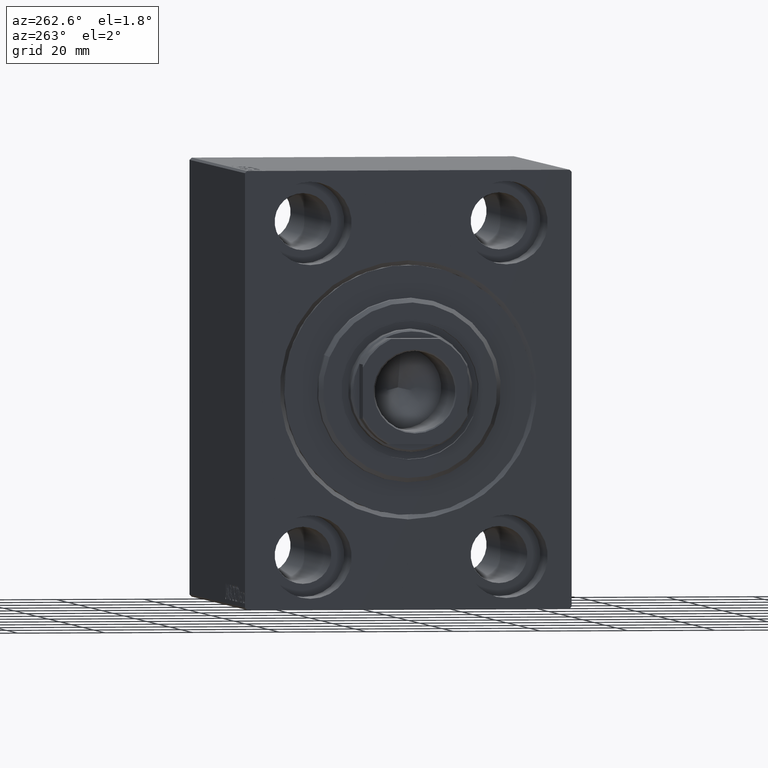
[diagram: clean part render]
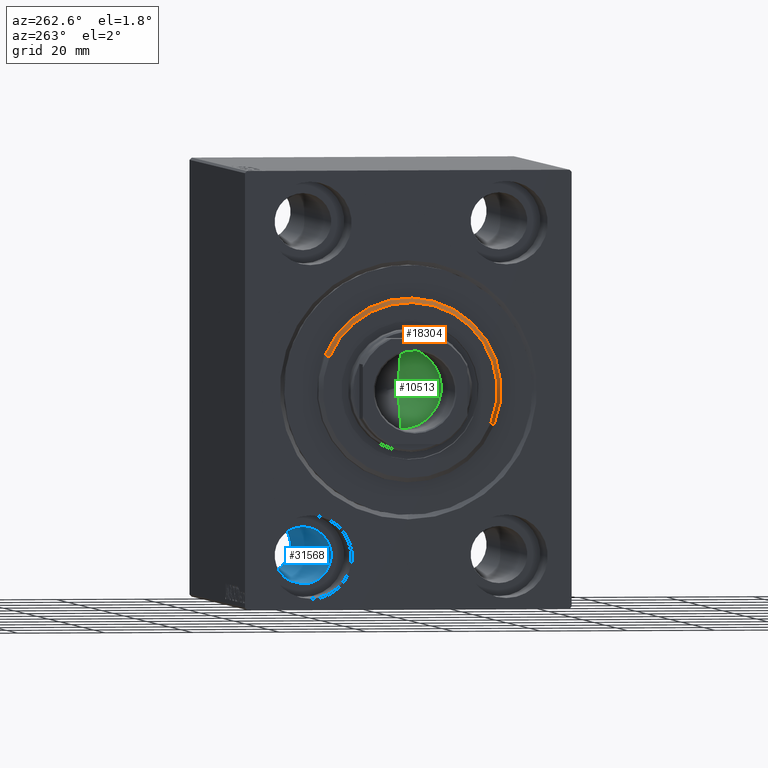
[diagram: same view with three faces highlighted in distinct colors, each labeled with its STEP entity id]
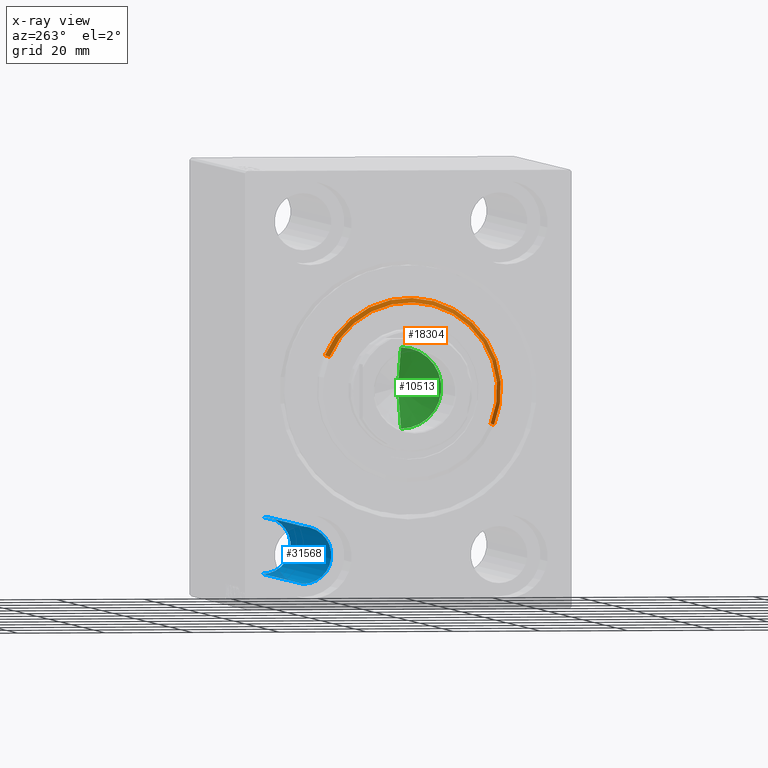
[diagram: x-ray of the same camera — body ghosted, the three highlighted faces saturated]
A machine part, auxiliary view with three faces highlighted in distinct colors.
The next image is the same camera in x-ray (body ghosted, the three faces saturated) — at least one of them is partly hidden behind the body in this view.
Their STEP definitions:

[orange] entity #18304 — the highlighted conical surface has half-angle 45 deg.
#291 = CARTESIAN_POINT ( 'NONE',  ( 1.999999999999995781, 0.000000000000000000, 0.000000000000000000 ) ) ;
#860 = CARTESIAN_POINT ( 'NONE',  ( 1.999999999999995781, 2.571758278209441661E-15, -21.00000000000000000 ) ) ;
#945 = CARTESIAN_POINT ( 'NONE',  ( 3.000000000000000000, 2.449293598294706119E-15, -19.99999999999999645 ) ) ;
#1237 = ORIENTED_EDGE ( 'NONE', *, *, #3890, .F. ) ;
#1366 = LINE ( 'NONE', #945, #41494 ) ;
#1562 = CIRCLE ( 'NONE', #25507, 21.00000000000000000 ) ;
#3890 = EDGE_CURVE ( 'NONE', #30505, #18484, #1366, .T. ) ;
#4432 = DIRECTION ( 'NONE',  ( 0.000000000000000000, 0.000000000000000000, 1.000000000000000000 ) ) ;
#4762 = CARTESIAN_POINT ( 'NONE',  ( 1.999999999999995781, 0.000000000000000000, 21.00000000000000000 ) ) ;
#6189 = CARTESIAN_POINT ( 'NONE',  ( 3.000000000000000000, 0.000000000000000000, 19.99999999999999645 ) ) ;
#6811 = DIRECTION ( 'NONE',  ( 1.000000000000000000, -0.000000000000000000, 0.000000000000000000 ) ) ;
#7131 = DIRECTION ( 'NONE',  ( -1.000000000000000000, 0.000000000000000000, 0.000000000000000000 ) ) ;
#8491 = VERTEX_POINT ( 'NONE', #6189 ) ;
#11655 = EDGE_CURVE ( 'NONE', #8491, #23644, #11966, .T. ) ;
#11834 = CONICAL_SURFACE ( 'NONE', #35810, 19.99999999999999645, 0.7853981633974482790 ) ;
#11966 = LINE ( 'NONE', #22118, #42693 ) ;
#14169 = CIRCLE ( 'NONE', #38839, 19.99999999999999645 ) ;
#14386 = CARTESIAN_POINT ( 'NONE',  ( 3.000000000000000000, 2.510525938252074087E-15, -19.99999999999999645 ) ) ;
#15016 = FACE_OUTER_BOUND ( 'NONE', #24192, .T. ) ;
#18304 = ADVANCED_FACE ( 'NONE', ( #15016 ), #11834, .T. ) ;
#18484 = VERTEX_POINT ( 'NONE', #860 ) ;
#20315 = ORIENTED_EDGE ( 'NONE', *, *, #35592, .F. ) ;
#22118 = CARTESIAN_POINT ( 'NONE',  ( 3.000000000000000000, 0.000000000000000000, 19.99999999999999645 ) ) ;
#23209 = ORIENTED_EDGE ( 'NONE', *, *, #11655, .T. ) ;
#23644 = VERTEX_POINT ( 'NONE', #4762 ) ;
#24192 = EDGE_LOOP ( 'NONE', ( #1237, #34684, #23209, #20315 ) ) ;
#25507 = AXIS2_PLACEMENT_3D ( 'NONE', #291, #7131, #26994 ) ;
#26994 = DIRECTION ( 'NONE',  ( 0.000000000000000000, 0.000000000000000000, -1.000000000000000000 ) ) ;
#28685 = DIRECTION ( 'NONE',  ( -1.000000000000000000, 0.000000000000000000, 0.000000000000000000 ) ) ;
#29776 = CARTESIAN_POINT ( 'NONE',  ( 3.000000000000000000, 0.000000000000000000, 0.000000000000000000 ) ) ;
#30505 = VERTEX_POINT ( 'NONE', #14386 ) ;
#32379 = EDGE_CURVE ( 'NONE', #8491, #30505, #14169, .T. ) ;
#34684 = ORIENTED_EDGE ( 'NONE', *, *, #32379, .F. ) ;
#35592 = EDGE_CURVE ( 'NONE', #18484, #23644, #1562, .T. ) ;
#35810 = AXIS2_PLACEMENT_3D ( 'NONE', #42385, #28685, #4432 ) ;
#38839 = AXIS2_PLACEMENT_3D ( 'NONE', #29776, #6811, #40589 ) ;
#38901 = DIRECTION ( 'NONE',  ( -0.7071067811865474617, 0.000000000000000000, 0.7071067811865474617 ) ) ;
#40589 = DIRECTION ( 'NONE',  ( 0.000000000000000000, 0.000000000000000000, -1.000000000000000000 ) ) ;
#41494 = VECTOR ( 'NONE', #41764, 1000.000000000000114 ) ;
#41764 = DIRECTION ( 'NONE',  ( -0.7071067811865474617, 8.659560562354932858E-17, -0.7071067811865474617 ) ) ;
#42385 = CARTESIAN_POINT ( 'NONE',  ( 3.000000000000000000, 0.000000000000000000, 0.000000000000000000 ) ) ;
#42693 = VECTOR ( 'NONE', #38901, 1000.000000000000114 ) ;

[blue] entity #31568 — the highlighted cylindrical surface (edge-blend (fillet) strip) has radius 6.5 mm, axis along (-1, -0, -0).
#135 = LINE ( 'NONE', #16678, #33061 ) ;
#1350 = VECTOR ( 'NONE', #3820, 1000.000000000000000 ) ;
#2179 = CARTESIAN_POINT ( 'NONE',  ( 98.00000000000000000, 22.49999999999999645, -37.99999999999999289 ) ) ;
#3133 = CARTESIAN_POINT ( 'NONE',  ( 85.00000000000000000, 22.49999999999999645, -44.49999999999999289 ) ) ;
#3820 = DIRECTION ( 'NONE',  ( -1.000000000000000000, -0.000000000000000000, -0.000000000000000000 ) ) ;
#4675 = EDGE_CURVE ( 'NONE', #30281, #30081, #34057, .T. ) ;
#7076 = AXIS2_PLACEMENT_3D ( 'NONE', #2179, #31751, #14983 ) ;
#9071 = AXIS2_PLACEMENT_3D ( 'NONE', #11024, #38178, #37952 ) ;
#10166 = ORIENTED_EDGE ( 'NONE', *, *, #12268, .T. ) ;
#11024 = CARTESIAN_POINT ( 'NONE',  ( 85.00000000000000000, 22.49999999999999645, -37.99999999999999289 ) ) ;
#12268 = EDGE_CURVE ( 'NONE', #21032, #30081, #18737, .T. ) ;
#13372 = DIRECTION ( 'NONE',  ( -1.000000000000000000, -0.000000000000000000, -0.000000000000000000 ) ) ;
#13972 = CARTESIAN_POINT ( 'NONE',  ( 98.00000000000000000, 22.49999999999999645, -31.49999999999999289 ) ) ;
#14983 = DIRECTION ( 'NONE',  ( 0.000000000000000000, 0.000000000000000000, 1.000000000000000000 ) ) ;
#16678 = CARTESIAN_POINT ( 'NONE',  ( 98.00000000000000000, 22.49999999999999645, -44.49999999999999289 ) ) ;
#18737 = CIRCLE ( 'NONE', #24374, 6.499999999999999112 ) ;
#20840 = EDGE_CURVE ( 'NONE', #38109, #30281, #23143, .T. ) ;
#21032 = VERTEX_POINT ( 'NONE', #34592 ) ;
#22485 = CYLINDRICAL_SURFACE ( 'NONE', #7076, 6.499999999999999112 ) ;
#22584 = CARTESIAN_POINT ( 'NONE',  ( 85.00000000000000000, 22.49999999999999645, -31.49999999999999289 ) ) ;
#23143 = CIRCLE ( 'NONE', #9071, 6.499999999999999112 ) ;
#24374 = AXIS2_PLACEMENT_3D ( 'NONE', #26851, #40755, #40319 ) ;
#26250 = EDGE_CURVE ( 'NONE', #38109, #21032, #135, .T. ) ;
#26851 = CARTESIAN_POINT ( 'NONE',  ( 12.99999999999999822, 22.49999999999999645, -37.99999999999999289 ) ) ;
#28588 = CARTESIAN_POINT ( 'NONE',  ( 12.99999999999999822, 22.49999999999999645, -31.49999999999999289 ) ) ;
#30081 = VERTEX_POINT ( 'NONE', #28588 ) ;
#30281 = VERTEX_POINT ( 'NONE', #22584 ) ;
#31300 = ORIENTED_EDGE ( 'NONE', *, *, #20840, .F. ) ;
#31468 = ORIENTED_EDGE ( 'NONE', *, *, #4675, .F. ) ;
#31568 = ADVANCED_FACE ( 'NONE', ( #35948 ), #22485, .F. ) ;
#31751 = DIRECTION ( 'NONE',  ( -1.000000000000000000, -0.000000000000000000, -0.000000000000000000 ) ) ;
#33061 = VECTOR ( 'NONE', #13372, 1000.000000000000000 ) ;
#34057 = LINE ( 'NONE', #13972, #1350 ) ;
#34592 = CARTESIAN_POINT ( 'NONE',  ( 12.99999999999999822, 22.49999999999999645, -44.49999999999999289 ) ) ;
#35948 = FACE_OUTER_BOUND ( 'NONE', #36540, .T. ) ;
#36540 = EDGE_LOOP ( 'NONE', ( #31300, #39257, #10166, #31468 ) ) ;
#37952 = DIRECTION ( 'NONE',  ( 0.000000000000000000, 0.000000000000000000, -1.000000000000000000 ) ) ;
#38109 = VERTEX_POINT ( 'NONE', #3133 ) ;
#38178 = DIRECTION ( 'NONE',  ( -1.000000000000000000, -0.000000000000000000, -0.000000000000000000 ) ) ;
#39257 = ORIENTED_EDGE ( 'NONE', *, *, #26250, .T. ) ;
#40319 = DIRECTION ( 'NONE',  ( 0.000000000000000000, 0.000000000000000000, 1.000000000000000000 ) ) ;
#40755 = DIRECTION ( 'NONE',  ( -1.000000000000000000, 0.000000000000000000, 0.000000000000000000 ) ) ;

[green] entity #10513 — the highlighted conical surface has half-angle 59 deg.
#105 = CONICAL_SURFACE ( 'NONE', #828, 9.249999999999994671, 1.029744258676652535 ) ;
#826 = CARTESIAN_POINT ( 'NONE',  ( -6.793016015247754405E-15, 0.000000000000000000, 65.44203927399505005 ) ) ;
#828 = AXIS2_PLACEMENT_3D ( 'NONE', #16426, #19084, #29879 ) ;
#1503 = EDGE_CURVE ( 'NONE', #28379, #10415, #37314, .T. ) ;
#3387 = CARTESIAN_POINT ( 'NONE',  ( -9.249999999999994671, 1.132798289211300909E-15, 71.00000000000001421 ) ) ;
#5482 = VECTOR ( 'NONE', #20543, 1000.000000000000000 ) ;
#7175 = LINE ( 'NONE', #20848, #34520 ) ;
#9368 = EDGE_LOOP ( 'NONE', ( #16508, #11170, #19105 ) ) ;
#10415 = VERTEX_POINT ( 'NONE', #22828 ) ;
#10513 = ADVANCED_FACE ( 'NONE', ( #16632 ), #105, .F. ) ;
#11170 = ORIENTED_EDGE ( 'NONE', *, *, #28598, .T. ) ;
#11268 = VERTEX_POINT ( 'NONE', #3387 ) ;
#15400 = DIRECTION ( 'NONE',  ( 1.000000000000000000, 0.000000000000000000, 0.000000000000000000 ) ) ;
#16426 = CARTESIAN_POINT ( 'NONE',  ( 0.000000000000000000, 0.000000000000000000, 71.00000000000001421 ) ) ;
#16508 = ORIENTED_EDGE ( 'NONE', *, *, #1503, .F. ) ;
#16632 = FACE_OUTER_BOUND ( 'NONE', #9368, .T. ) ;
#17978 = DIRECTION ( 'NONE',  ( -0.8571673007021113344, 1.049727191138617463E-16, 0.5150380749100558209 ) ) ;
#19084 = DIRECTION ( 'NONE',  ( -0.000000000000000000, -0.000000000000000000, 1.000000000000000000 ) ) ;
#19105 = ORIENTED_EDGE ( 'NONE', *, *, #23269, .T. ) ;
#20543 = DIRECTION ( 'NONE',  ( 0.8571673007021113344, 0.000000000000000000, 0.5150380749100558209 ) ) ;
#20729 = DIRECTION ( 'NONE',  ( -0.000000000000000000, -0.000000000000000000, 1.000000000000000000 ) ) ;
#20848 = CARTESIAN_POINT ( 'NONE',  ( -9.249999999999994671, 1.132798289211300909E-15, 71.00000000000001421 ) ) ;
#22828 = CARTESIAN_POINT ( 'NONE',  ( 9.249999999999994671, 0.000000000000000000, 71.00000000000001421 ) ) ;
#23269 = EDGE_CURVE ( 'NONE', #11268, #10415, #32368, .T. ) ;
#28379 = VERTEX_POINT ( 'NONE', #826 ) ;
#28598 = EDGE_CURVE ( 'NONE', #28379, #11268, #7175, .T. ) ;
#29879 = DIRECTION ( 'NONE',  ( 1.000000000000000000, 0.000000000000000000, 0.000000000000000000 ) ) ;
#32368 = CIRCLE ( 'NONE', #42979, 9.249999999999994671 ) ;
#33997 = CARTESIAN_POINT ( 'NONE',  ( 9.249999999999994671, 0.000000000000000000, 71.00000000000001421 ) ) ;
#34520 = VECTOR ( 'NONE', #17978, 1000.000000000000000 ) ;
#37314 = LINE ( 'NONE', #33997, #5482 ) ;
#37509 = CARTESIAN_POINT ( 'NONE',  ( 0.000000000000000000, 0.000000000000000000, 71.00000000000001421 ) ) ;
#42979 = AXIS2_PLACEMENT_3D ( 'NONE', #37509, #20729, #15400 ) ;